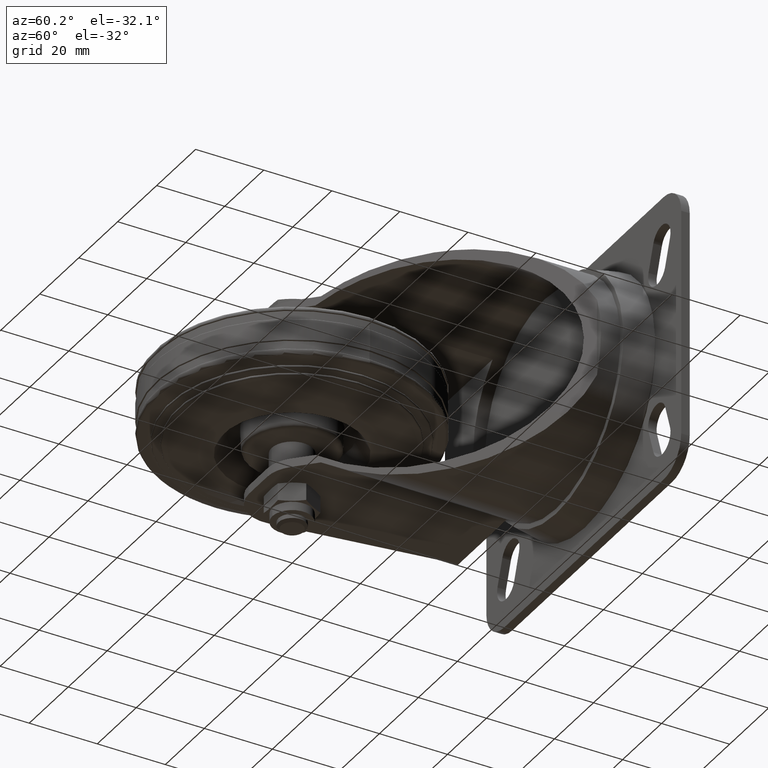
[diagram: clean part render]
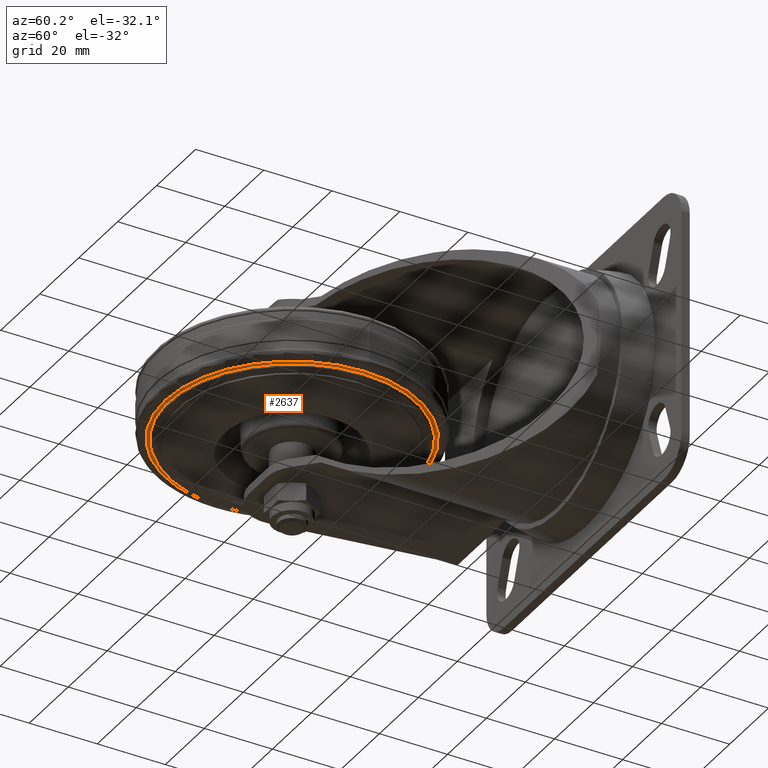
[diagram: same view with one face highlighted and labeled with its STEP entity id]
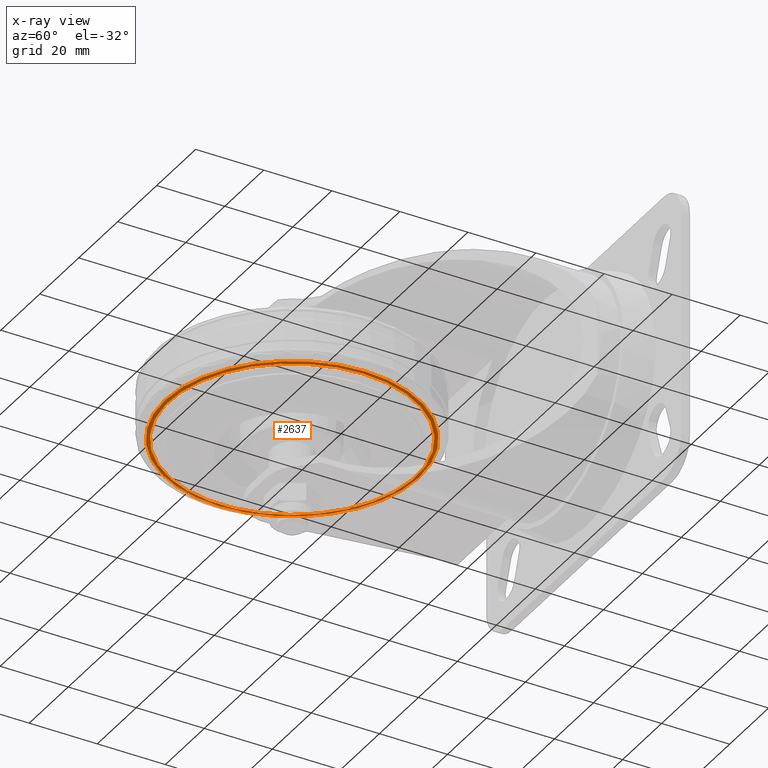
[diagram: x-ray of the same camera — body ghosted, the highlighted face saturated]
A machine part, auxiliary view. The second image highlights one B-rep face of the part: STEP entity #2637.
The next image is the same camera in x-ray: the body ghosted, the highlighted face saturated — about 19% of this face is hidden behind the body in this view.
In plain terms, the highlighted toroidal blend (fillet) surface has major radius 36.3383 mm and minor (blend) radius 3 mm.
Its self-contained STEP definition (entity closure, byte-faithful):
#42=TOROIDAL_SURFACE('',#3080,36.3383236355488,2.99999999999999);
#664=FACE_OUTER_BOUND('',#869,.T.);
#869=EDGE_LOOP('',(#2375,#2376,#2377,#2378,#2379));
#1044=CIRCLE('',#3079,36.3383236355488);
#1045=CIRCLE('',#3081,2.99999999999999);
#1046=CIRCLE('',#3082,37.3150280989202);
#1047=CIRCLE('',#3083,37.3150280989202);
#1328=VERTEX_POINT('',#4801);
#1329=VERTEX_POINT('',#4804);
#1330=VERTEX_POINT('',#4806);
#1679=EDGE_CURVE('',#1328,#1328,#1044,.T.);
#1680=EDGE_CURVE('',#1328,#1329,#1045,.T.);
#1681=EDGE_CURVE('',#1329,#1330,#1046,.T.);
#1682=EDGE_CURVE('',#1330,#1329,#1047,.T.);
#2375=ORIENTED_EDGE('',*,*,#1679,.F.);
#2376=ORIENTED_EDGE('',*,*,#1680,.T.);
#2377=ORIENTED_EDGE('',*,*,#1681,.T.);
#2378=ORIENTED_EDGE('',*,*,#1682,.T.);
#2379=ORIENTED_EDGE('',*,*,#1680,.F.);
#2637=ADVANCED_FACE('',(#664),#42,.T.);
#3079=AXIS2_PLACEMENT_3D('',#4802,#3878,#3879);
#3080=AXIS2_PLACEMENT_3D('',#4803,#3880,#3881);
#3081=AXIS2_PLACEMENT_3D('',#4805,#3882,#3883);
#3082=AXIS2_PLACEMENT_3D('',#4807,#3884,#3885);
#3083=AXIS2_PLACEMENT_3D('',#4808,#3886,#3887);
#3878=DIRECTION('center_axis',(6.12323399573677E-17,0.,-1.));
#3879=DIRECTION('ref_axis',(-1.,0.,-6.12323399573677E-17));
#3880=DIRECTION('center_axis',(6.12323399573677E-17,0.,-1.));
#3881=DIRECTION('ref_axis',(-1.,0.,-6.77338283091585E-17));
#3882=DIRECTION('center_axis',(-1.22464679914735E-16,-1.,-7.49879891330929E-33));
#3883=DIRECTION('ref_axis',(1.,-1.22464679914735E-16,5.64448569242988E-17));
#3884=DIRECTION('center_axis',(6.12323399573677E-17,0.,-1.));
#3885=DIRECTION('ref_axis',(-1.,0.,-6.12323399573677E-17));
#3886=DIRECTION('center_axis',(6.12323399573677E-17,0.,-1.));
#3887=DIRECTION('ref_axis',(-1.,0.,-6.12323399573677E-17));
#4801=CARTESIAN_POINT('',(36.3383236355488,-4.45016117266554E-15,-8.07871242701601));
#4802=CARTESIAN_POINT('Origin',(4.94678465748855E-16,0.,-8.07871242701601));
#4803=CARTESIAN_POINT('Origin',(0.,0.,-5.07871242701602));
#4804=CARTESIAN_POINT('',(37.3150280989202,-4.56977297214362E-15,-7.91526815381396));
#4805=CARTESIAN_POINT('Origin',(36.3383236355488,-4.45016117266554E-15,
-5.07871242701602));
#4806=CARTESIAN_POINT('',(-37.3150280989202,0.,-7.91526815381397));
#4807=CARTESIAN_POINT('Origin',(4.84670390448063E-16,0.,-7.91526815381396));
#4808=CARTESIAN_POINT('Origin',(4.84670390448063E-16,0.,-7.91526815381396));